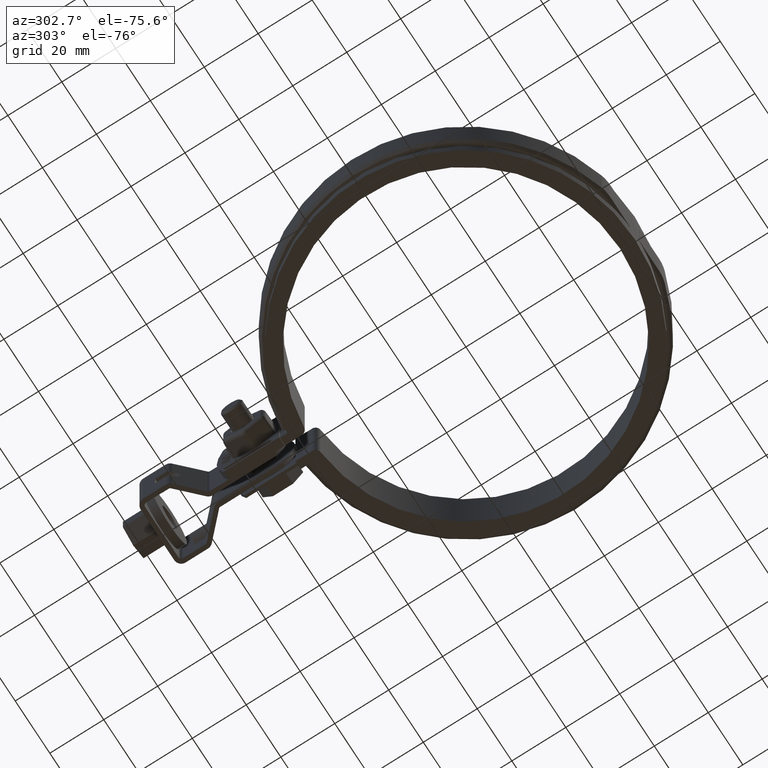
[diagram: clean part render]
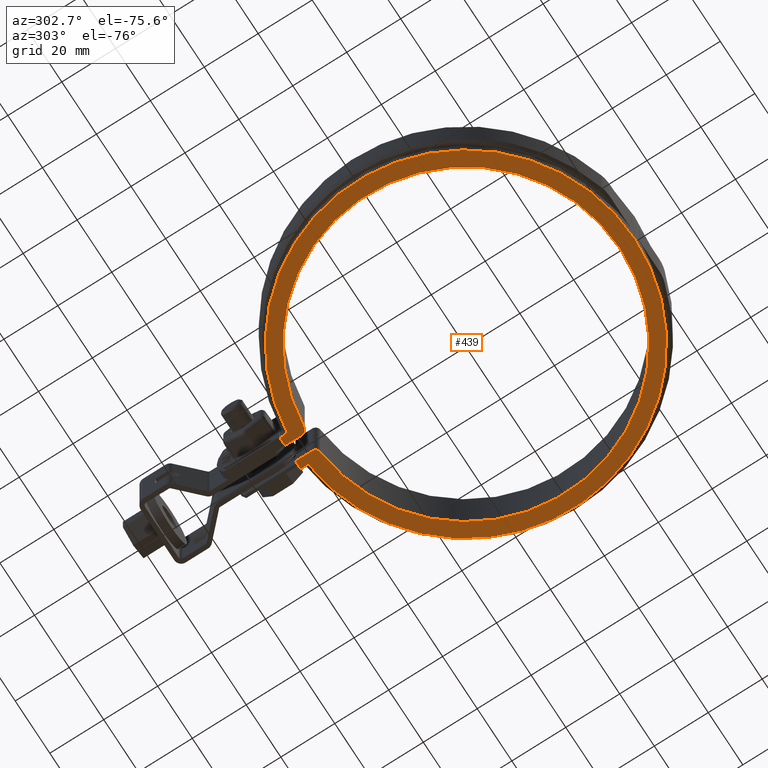
[diagram: same view with one face highlighted and labeled with its STEP entity id]
A machine part, auxiliary view. The second image highlights one B-rep face of the part: STEP entity #439.
In plain terms, the highlighted planar face has unit normal (0, 0, -1).
Its self-contained STEP definition (entity closure, byte-faithful):
#439 = ADVANCED_FACE( '', ( #853 ), #854, .T. );
#853 = FACE_OUTER_BOUND( '', #2061, .T. );
#854 = PLANE( '', #2062 );
#2061 = EDGE_LOOP( '', ( #3923, #3924, #3925, #3926, #3927, #3928, #3929, #3930, #3931, #3932 ) );
#2062 = AXIS2_PLACEMENT_3D( '', #3933, #3934, #3935 );
#3923 = ORIENTED_EDGE( '', *, *, #6280, .F. );
#3924 = ORIENTED_EDGE( '', *, *, #6281, .F. );
#3925 = ORIENTED_EDGE( '', *, *, #6282, .F. );
#3926 = ORIENTED_EDGE( '', *, *, #6283, .F. );
#3927 = ORIENTED_EDGE( '', *, *, #6233, .F. );
#3928 = ORIENTED_EDGE( '', *, *, #6284, .F. );
#3929 = ORIENTED_EDGE( '', *, *, #6285, .F. );
#3930 = ORIENTED_EDGE( '', *, *, #6241, .F. );
#3931 = ORIENTED_EDGE( '', *, *, #6186, .F. );
#3932 = ORIENTED_EDGE( '', *, *, #6156, .F. );
#3933 = CARTESIAN_POINT( '', ( 5.23468564512154, 60.8144995511336, -14.0000000000000 ) );
#3934 = DIRECTION( '', ( 0.000000000000000, 0.000000000000000, -1.00000000000000 ) );
#3935 = DIRECTION( '', ( 0.000000000000000, -1.00000000000000, 0.000000000000000 ) );
#6156 = EDGE_CURVE( '', #7148, #7150, #7151, .F. );
#6186 = EDGE_CURVE( '', #7150, #7205, #7206, .T. );
#6233 = EDGE_CURVE( '', #7289, #7272, #7291, .T. );
#6241 = EDGE_CURVE( '', #7205, #7305, #7306, .F. );
#6280 = EDGE_CURVE( '', #7366, #7148, #7367, .T. );
#6281 = EDGE_CURVE( '', #7368, #7366, #7369, .T. );
#6282 = EDGE_CURVE( '', #7370, #7368, #7371, .T. );
#6283 = EDGE_CURVE( '', #7272, #7370, #7372, .F. );
#6284 = EDGE_CURVE( '', #7373, #7289, #7374, .T. );
#6285 = EDGE_CURVE( '', #7305, #7373, #7375, .T. );
#7148 = VERTEX_POINT( '', #9776 );
#7150 = VERTEX_POINT( '', #9779 );
#7151 = CIRCLE( '', #9780, 2.00000000000000 );
#7205 = VERTEX_POINT( '', #9962 );
#7206 = CIRCLE( '', #9963, 57.1500000000000 );
#7272 = VERTEX_POINT( '', #10458 );
#7289 = VERTEX_POINT( '', #10487 );
#7291 = LINE( '', #10490, #10491 );
#7305 = VERTEX_POINT( '', #10525 );
#7306 = CIRCLE( '', #10526, 2.00000000000000 );
#7366 = VERTEX_POINT( '', #10713 );
#7367 = LINE( '', #10714, #10715 );
#7368 = VERTEX_POINT( '', #10716 );
#7369 = LINE( '', #10717, #10718 );
#7370 = VERTEX_POINT( '', #10719 );
#7371 = LINE( '', #10720, #10721 );
#7372 = CIRCLE( '', #10722, 62.6500000000000 );
#7373 = VERTEX_POINT( '', #10723 );
#7374 = LINE( '', #10724, #10725 );
#7375 = LINE( '', #10726, #10727 );
#9776 = CARTESIAN_POINT( '', ( 3.00000000000000, 58.9382940031352, -14.0000000000000 ) );
#9779 = CARTESIAN_POINT( '', ( 4.83093829247673, 56.9454522785998, -14.0000000000000 ) );
#9780 = AXIS2_PLACEMENT_3D( '', #12475, #12476, #12477 );
#9962 = CARTESIAN_POINT( '', ( -4.83093829247669, 56.9454522785998, -14.0000000000000 ) );
#9963 = AXIS2_PLACEMENT_3D( '', #12516, #12517, #12518 );
#10458 = CARTESIAN_POINT( '', ( -6.00000000000000, 62.3620277091757, -14.0000000000000 ) );
#10487 = CARTESIAN_POINT( '', ( -6.00000000000000, 65.1500000000000, -14.0000000000000 ) );
#10490 = CARTESIAN_POINT( '', ( -6.00000000000000, 65.1500000000000, -14.0000000000000 ) );
#10491 = VECTOR( '', #12562, 1000.00000000000 );
#10525 = CARTESIAN_POINT( '', ( -2.99999999999995, 58.9382940031352, -14.0000000000000 ) );
#10526 = AXIS2_PLACEMENT_3D( '', #12574, #12575, #12576 );
#10713 = CARTESIAN_POINT( '', ( 3.00000000000000, 65.1500000000000, -14.0000000000000 ) );
#10714 = CARTESIAN_POINT( '', ( 3.00000000000000, 65.1500000000000, -14.0000000000000 ) );
#10715 = VECTOR( '', #12622, 1000.00000000000 );
#10716 = CARTESIAN_POINT( '', ( 6.00000000000001, 65.1500000000000, -14.0000000000000 ) );
#10717 = CARTESIAN_POINT( '', ( 6.00000000000001, 65.1500000000000, -14.0000000000000 ) );
#10718 = VECTOR( '', #12623, 1000.00000000000 );
#10719 = CARTESIAN_POINT( '', ( 6.00000000000001, 62.3620277091757, -14.0000000000000 ) );
#10720 = CARTESIAN_POINT( '', ( 6.00000000000001, 62.3620277091758, -14.0000000000000 ) );
#10721 = VECTOR( '', #12624, 1000.00000000000 );
#10722 = AXIS2_PLACEMENT_3D( '', #12625, #12626, #12627 );
#10723 = CARTESIAN_POINT( '', ( -2.99999999999995, 65.1500000000000, -14.0000000000000 ) );
#10724 = CARTESIAN_POINT( '', ( -5.00000000000001, 65.1500000000000, -14.0000000000000 ) );
#10725 = VECTOR( '', #12628, 1000.00000000000 );
#10726 = CARTESIAN_POINT( '', ( -2.99999999999995, 58.9382940031352, -14.0000000000000 ) );
#10727 = VECTOR( '', #12629, 1000.00000000000 );
#12475 = CARTESIAN_POINT( '', ( 5.00000000000000, 58.9382940031352, -14.0000000000000 ) );
#12476 = DIRECTION( '', ( 0.000000000000000, 0.000000000000000, -1.00000000000000 ) );
#12477 = DIRECTION( '', ( -1.00000000000000, 0.000000000000000, 0.000000000000000 ) );
#12516 = CARTESIAN_POINT( '', ( 3.46944695195361E-015, 3.46944695195361E-014, -14.0000000000000 ) );
#12517 = DIRECTION( '', ( 0.000000000000000, 0.000000000000000, -1.00000000000000 ) );
#12518 = DIRECTION( '', ( -1.00000000000000, 0.000000000000000, 0.000000000000000 ) );
#12562 = DIRECTION( '', ( -6.93889390390723E-017, -1.00000000000000, 0.000000000000000 ) );
#12574 = CARTESIAN_POINT( '', ( -4.99999999999995, 58.9382940031352, -14.0000000000000 ) );
#12575 = DIRECTION( '', ( 0.000000000000000, 0.000000000000000, -1.00000000000000 ) );
#12576 = DIRECTION( '', ( -1.00000000000000, 0.000000000000000, 0.000000000000000 ) );
#12622 = DIRECTION( '', ( -4.16333634234434E-017, -1.00000000000000, 0.000000000000000 ) );
#12623 = DIRECTION( '', ( -1.00000000000000, 0.000000000000000, 0.000000000000000 ) );
#12624 = DIRECTION( '', ( 6.93889390390723E-017, 1.00000000000000, 0.000000000000000 ) );
#12625 = CARTESIAN_POINT( '', ( 8.67361737988404E-016, 0.000000000000000, -14.0000000000000 ) );
#12626 = DIRECTION( '', ( 0.000000000000000, 0.000000000000000, -1.00000000000000 ) );
#12627 = DIRECTION( '', ( -1.00000000000000, 0.000000000000000, 0.000000000000000 ) );
#12628 = DIRECTION( '', ( -1.00000000000000, 0.000000000000000, 0.000000000000000 ) );
#12629 = DIRECTION( '', ( 4.16333634234434E-017, 1.00000000000000, 0.000000000000000 ) );